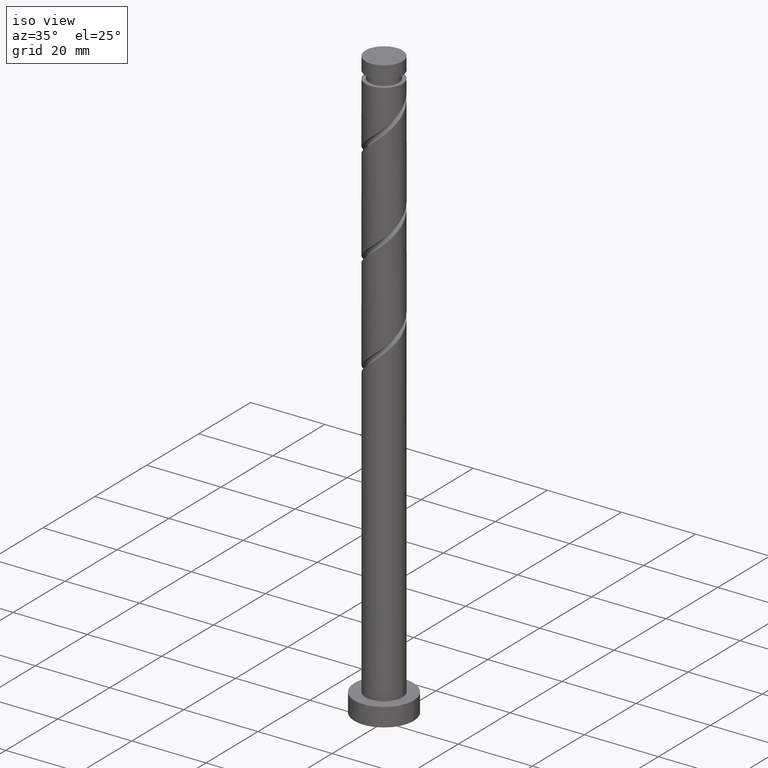
[diagram: clean part render]
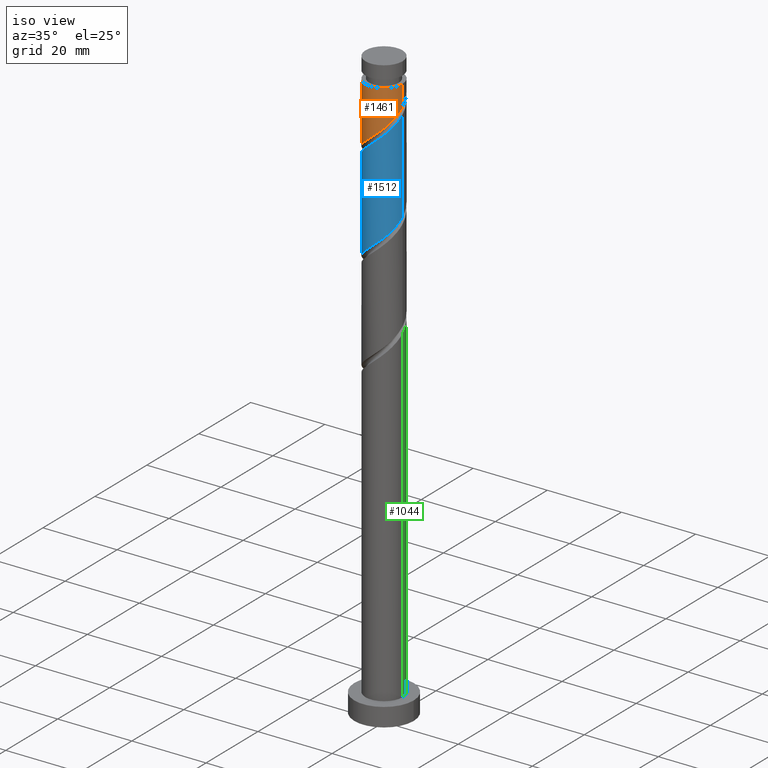
[diagram: same view with three faces highlighted in distinct colors, each labeled with its STEP entity id]
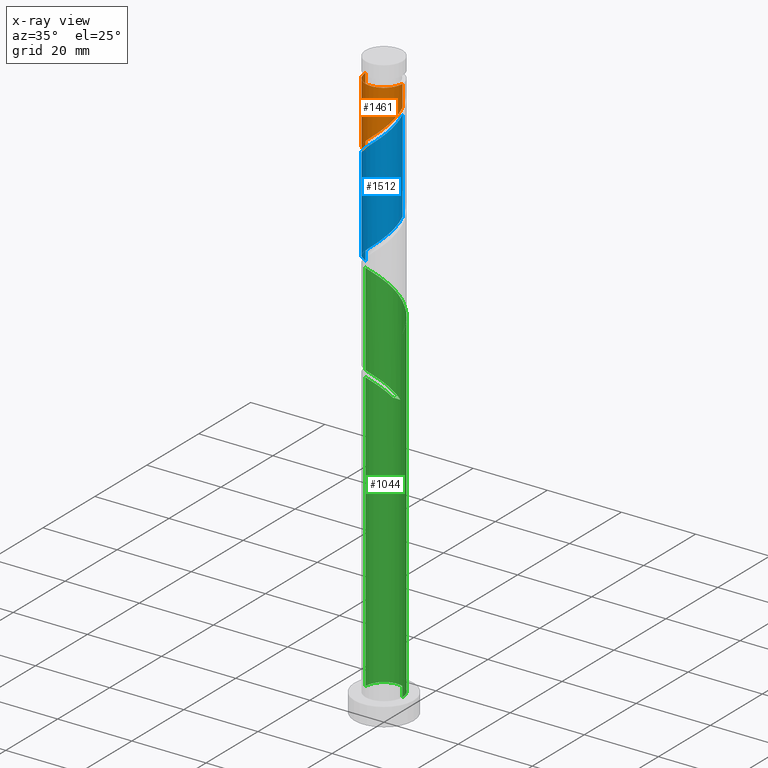
[diagram: x-ray of the same camera — body ghosted, the three highlighted faces saturated]
A machine part, iso view with three faces highlighted in distinct colors.
The next image is the same camera in x-ray (body ghosted, the three faces saturated) — at least one of them is partly hidden behind the body in this view.
Their STEP definitions:

[orange] entity #1461 — the highlighted cylindrical surface (edge-blend (fillet) strip) has radius 5 mm, axis along (-0, -0, -1).
#97 = CARTESIAN_POINT ( 'NONE',  ( -5.000000000000000000, -0.5726446369256177338, 135.8499097689624762 ) ) ;
#116 = CARTESIAN_POINT ( 'NONE',  ( 0.000000000000000000, 0.000000000000000000, 160.0000000000000000 ) ) ;
#124 = DIRECTION ( 'NONE',  ( -1.000000000000000000, 0.000000000000000000, 0.000000000000000000 ) ) ;
#224 = FACE_OUTER_BOUND ( 'NONE', #928, .T. ) ;
#227 = CARTESIAN_POINT ( 'NONE',  ( -4.707993719930677834, -1.830737577780034542, 136.9387377609327245 ) ) ;
#289 = ORIENTED_EDGE ( 'NONE', *, *, #1433, .F. ) ;
#306 = CARTESIAN_POINT ( 'NONE',  ( 4.708523589020789935, -1.682202607189386967, 147.2417680639629793 ) ) ;
#316 = CARTESIAN_POINT ( 'NONE',  ( 2.482120673787417520, -4.399532009925572140, 144.2114650336599198 ) ) ;
#343 = CARTESIAN_POINT ( 'NONE',  ( 5.000000000000000000, 3.589636968839166370E-16, 148.6972831493244769 ) ) ;
#410 = VERTEX_POINT ( 'NONE', #462 ) ;
#436 = CARTESIAN_POINT ( 'NONE',  ( 5.000000000000000888, -0.1438776326191063271, 148.5751851446062801 ) ) ;
#462 = CARTESIAN_POINT ( 'NONE',  ( 4.999999999999993783, 6.123233995736762338E-16, 154.5144953366902314 ) ) ;
#471 = CARTESIAN_POINT ( 'NONE',  ( -0.2904737965312536030, -5.043057596253620822, 141.7872226094175687 ) ) ;
#498 = CARTESIAN_POINT ( 'NONE',  ( 1.812103308943839419, -4.660073132228159665, 143.6054044275993533 ) ) ;
#505 = CARTESIAN_POINT ( 'NONE',  ( -5.000000000000000000, 0.000000000000000000, 160.0000000000000000 ) ) ;
#537 = ORIENTED_EDGE ( 'NONE', *, *, #676, .T. ) ;
#560 = EDGE_CURVE ( 'NONE', #563, #1305, #763, .T. ) ;
#563 = VERTEX_POINT ( 'NONE', #343 ) ;
#573 = CARTESIAN_POINT ( 'NONE',  ( 4.991726541412347729, -0.2875171921111941420, 148.4538892760842259 ) ) ;
#581 = CARTESIAN_POINT ( 'NONE',  ( 4.043864058114778892, -2.940605971477217473, 146.0296468518417328 ) ) ;
#597 = CARTESIAN_POINT ( 'NONE',  ( -4.999999999999993783, 0.000000000000000000, 154.5144953366902314 ) ) ;
#601 = CARTESIAN_POINT ( 'NONE',  ( -2.335172983261505131, -4.421195216029887298, 139.9690407912356989 ) ) ;
#676 = EDGE_CURVE ( 'NONE', #410, #1336, #948, .T. ) ;
#696 = EDGE_CURVE ( 'NONE', #1336, #1305, #1655, .T. ) ;
#763 =( BOUNDED_CURVE ( )  B_SPLINE_CURVE ( 2, ( #1225, #436, #573, #977, #306, #826, #581, #1091, #1591, #316, #498, #985, #1387, #471, #1520, #1010, #601, #1611, #1395, #881, #1130, #227, #1377, #97, #1265 ),
 .UNSPECIFIED., .F., .T. ) 
 B_SPLINE_CURVE_WITH_KNOTS ( ( 3, 2, 2, 2, 2, 2, 2, 2, 2, 2, 2, 2, 3 ),
 ( 0.3045252162417512176, 0.3068181818181818232, 0.3181818181818181768, 0.3295454545454545303, 0.3409090909090908839, 0.3522727272727272929, 0.3636363636363636465, 0.3750000000000000000, 0.3863636363636363535, 0.3977272727272727071, 0.4090909090909091161, 0.4204545454545454697, 0.4295252162417512731 ),
 .UNSPECIFIED. ) 
 CURVE ( )  GEOMETRIC_REPRESENTATION_ITEM ( )  RATIONAL_B_SPLINE_CURVE ( ( 0.9061101570135533523, 0.9072237824201355716, 0.9090909090909131685, 0.8998376744372155178, 0.9090909090909131685, 0.8998376744372155178, 0.9090909090909131685, 0.8998376744372155178, 0.9090909090909131685, 0.8998376744372155178, 0.9090909090909131685, 0.8998376744372155178, 0.9090909090909131685, 0.8998376744372155178, 0.9090909090909131685, 0.8998376744372155178, 0.9090909090909131685, 0.8998376744372155178, 0.9090909090909131685, 0.8998376744372155178, 0.9090909090909131685, 0.8998376744372155178, 0.9090909090909131685, 0.9017048011079930037, 0.9061101570135534633 ) ) 
 REPRESENTATION_ITEM ( '' )  );
#787 = AXIS2_PLACEMENT_3D ( 'NONE', #116, #1007, #124 ) ;
#826 = CARTESIAN_POINT ( 'NONE',  ( 4.466659368005205799, -2.359186096053885073, 146.6357074579024129 ) ) ;
#830 = ORIENTED_EDGE ( 'NONE', *, *, #560, .F. ) ;
#851 = DIRECTION ( 'NONE',  ( -0.000000000000000000, -0.000000000000000000, -1.000000000000000000 ) ) ;
#862 = VECTOR ( 'NONE', #1158, 1000.000000000000000 ) ;
#881 = CARTESIAN_POINT ( 'NONE',  ( -4.001508515401012822, -3.082974950721431018, 138.1508589730539427 ) ) ;
#928 = EDGE_LOOP ( 'NONE', ( #289, #537, #1442, #830 ) ) ;
#948 = CIRCLE ( 'NONE', #1142, 4.999999999999993783 ) ;
#977 = CARTESIAN_POINT ( 'NONE',  ( 4.950387810036377623, -1.005219118324889971, 147.8478286700236310 ) ) ;
#985 = CARTESIAN_POINT ( 'NONE',  ( 1.142085944100263095, -4.920614254530754295, 142.9993438215387300 ) ) ;
#999 = DIRECTION ( 'NONE',  ( -0.000000000000000000, -0.000000000000000000, -1.000000000000000000 ) ) ;
#1007 = DIRECTION ( 'NONE',  ( -0.000000000000000000, -0.000000000000000000, -1.000000000000000000 ) ) ;
#1010 = CARTESIAN_POINT ( 'NONE',  ( -1.699501077681990768, -4.756942403746379000, 140.5751013972963221 ) ) ;
#1091 = CARTESIAN_POINT ( 'NONE',  ( 3.621068748224353762, -3.522025846900549428, 145.4235862457811663 ) ) ;
#1130 = CARTESIAN_POINT ( 'NONE',  ( -4.354751117665845328, -2.456856264250733002, 137.5447983669932626 ) ) ;
#1140 = CARTESIAN_POINT ( 'NONE',  ( 0.000000000000000000, 0.000000000000000000, 154.5144953366902314 ) ) ;
#1142 = AXIS2_PLACEMENT_3D ( 'NONE', #1140, #851, #1362 ) ;
#1158 = DIRECTION ( 'NONE',  ( -0.000000000000000000, -0.000000000000000000, -1.000000000000000000 ) ) ;
#1225 = CARTESIAN_POINT ( 'NONE',  ( 5.000000000000000000, 3.589636968839166370E-16, 148.6972831493244769 ) ) ;
#1265 = CARTESIAN_POINT ( 'NONE',  ( -4.999999999999999112, -1.510638891053149259E-15, 135.3639498159911341 ) ) ;
#1305 = VERTEX_POINT ( 'NONE', #1606 ) ;
#1336 = VERTEX_POINT ( 'NONE', #597 ) ;
#1362 = DIRECTION ( 'NONE',  ( -1.000000000000000000, 0.000000000000000000, 0.000000000000000000 ) ) ;
#1377 = CARTESIAN_POINT ( 'NONE',  ( -4.870529496359500499, -1.130461155941268059, 136.3326771548720444 ) ) ;
#1387 = CARTESIAN_POINT ( 'NONE',  ( 0.4258060737845039134, -4.981835925392186226, 142.3932832154781352 ) ) ;
#1395 = CARTESIAN_POINT ( 'NONE',  ( -3.486176702121015047, -3.584211489517412197, 138.7569195791144807 ) ) ;
#1433 = EDGE_CURVE ( 'NONE', #410, #563, #1492, .T. ) ;
#1442 = ORIENTED_EDGE ( 'NONE', *, *, #696, .T. ) ;
#1461 = ADVANCED_FACE ( 'NONE', ( #224 ), #1652, .T. ) ;
#1492 = LINE ( 'NONE', #1617, #1607 ) ;
#1520 = CARTESIAN_POINT ( 'NONE',  ( -0.9949874371066220746, -4.899999999999999467, 141.1811620033569170 ) ) ;
#1591 = CARTESIAN_POINT ( 'NONE',  ( 3.051594711005883642, -3.960778928413059674, 144.8175256397205430 ) ) ;
#1606 = CARTESIAN_POINT ( 'NONE',  ( -4.999999999999999112, -1.510638891053149259E-15, 135.3639498159911341 ) ) ;
#1607 = VECTOR ( 'NONE', #999, 1000.000000000000000 ) ;
#1611 = CARTESIAN_POINT ( 'NONE',  ( -2.970844888841019937, -4.085448028313397373, 139.3629801851751040 ) ) ;
#1617 = CARTESIAN_POINT ( 'NONE',  ( 5.000000000000000000, 6.123233995736766282E-16, 160.0000000000000000 ) ) ;
#1652 = CYLINDRICAL_SURFACE ( 'NONE', #787, 5.000000000000000000 ) ;
#1655 = LINE ( 'NONE', #505, #862 ) ;

[blue] entity #1512 — the highlighted cylindrical surface (edge-blend (fillet) strip) has radius 5 mm, axis along (-0, -0, -1).
#2 = CARTESIAN_POINT ( 'NONE',  ( 5.000000000000000888, -0.1438776326191028299, 121.9085184779395661 ) ) ;
#21 = CARTESIAN_POINT ( 'NONE',  ( -3.486176702121015047, -3.584211489517412197, 112.0902529124478235 ) ) ;
#30 = CARTESIAN_POINT ( 'NONE',  ( 5.000000000000000000, 7.343798965416794784E-15, 122.0306164826577913 ) ) ;
#57 = VECTOR ( 'NONE', #896, 1000.000000000000000 ) ;
#64 = CARTESIAN_POINT ( 'NONE',  ( 4.354751117665853322, -2.456856264250739219, 144.8175256397205430 ) ) ;
#67 = VERTEX_POINT ( 'NONE', #547 ) ;
#108 = CARTESIAN_POINT ( 'NONE',  ( -5.000000000000007105, 2.886666395774807235E-15, 133.6650408573893003 ) ) ;
#119 = CARTESIAN_POINT ( 'NONE',  ( 0.4258060737845039134, -4.981835925392186226, 115.7266165488114353 ) ) ;
#142 = CARTESIAN_POINT ( 'NONE',  ( -0.2904737965312536030, -5.043057596253620822, 115.1205559427508831 ) ) ;
#154 = CARTESIAN_POINT ( 'NONE',  ( 3.486176702121021709, -3.584211489517420635, 143.6054044275993249 ) ) ;
#164 = CARTESIAN_POINT ( 'NONE',  ( -4.708523589020798816, -1.682202607189388521, 135.1205559427508831 ) ) ;
#170 = CARTESIAN_POINT ( 'NONE',  ( -3.051594711005890748, -3.960778928413065003, 137.5447983669933194 ) ) ;
#217 = DIRECTION ( 'NONE',  ( -1.000000000000000000, 0.000000000000000000, 0.000000000000000000 ) ) ;
#244 = CARTESIAN_POINT ( 'NONE',  ( 4.950387810036377623, -1.005219118324889971, 121.1811620033569454 ) ) ;
#259 = CARTESIAN_POINT ( 'NONE',  ( 4.708523589020789935, -1.682202607189386967, 120.5751013972962795 ) ) ;
#281 =( BOUNDED_CURVE ( )  B_SPLINE_CURVE ( 2, ( #369, #2, #515, #244, #259, #1037, #789, #1540, #1299, #1656, #905, #1388, #119, #142, #661, #1181, #1411, #781, #21, #757, #1266, #890, #766, #1275, #1315 ),
 .UNSPECIFIED., .F., .T. ) 
 B_SPLINE_CURVE_WITH_KNOTS ( ( 3, 2, 2, 2, 2, 2, 2, 2, 2, 2, 2, 2, 3 ),
 ( 0.5545252162417511066, 0.5568181818181817677, 0.5681818181818182323, 0.5795454545454545858, 0.5909090909090909394, 0.6022727272727272929, 0.6136363636363636465, 0.6250000000000000000, 0.6363636363636363535, 0.6477272727272727071, 0.6590909090909090606, 0.6704545454545454142, 0.6795252162417513286 ),
 .UNSPECIFIED. ) 
 CURVE ( )  GEOMETRIC_REPRESENTATION_ITEM ( )  RATIONAL_B_SPLINE_CURVE ( ( 0.9061101570135534633, 0.9072237824201355716, 0.9090909090909131685, 0.8998376744372155178, 0.9090909090909131685, 0.8998376744372155178, 0.9090909090909131685, 0.8998376744372155178, 0.9090909090909131685, 0.8998376744372155178, 0.9090909090909131685, 0.8998376744372155178, 0.9090909090909131685, 0.8998376744372155178, 0.9090909090909131685, 0.8998376744372155178, 0.9090909090909131685, 0.8998376744372155178, 0.9090909090909131685, 0.8998376744372155178, 0.9090909090909131685, 0.8998376744372155178, 0.9090909090909131685, 0.9017048011079928926, 0.9061101570135534633 ) ) 
 REPRESENTATION_ITEM ( '' )  );
#296 = VERTEX_POINT ( 'NONE', #470 ) ;
#346 = ORIENTED_EDGE ( 'NONE', *, *, #1219, .F. ) ;
#369 = CARTESIAN_POINT ( 'NONE',  ( 5.000000000000000000, 7.343798965416794784E-15, 122.0306164826578055 ) ) ;
#373 = LINE ( 'NONE', #734, #57 ) ;
#415 = CARTESIAN_POINT ( 'NONE',  ( -3.621068748224359091, -3.522025846900554313, 136.9387377609326393 ) ) ;
#422 = CARTESIAN_POINT ( 'NONE',  ( 2.335172983261507795, -4.421195216029893515, 142.3932832154781352 ) ) ;
#429 = CARTESIAN_POINT ( 'NONE',  ( -2.482120673787422405, -4.399532009925576581, 138.1508589730538858 ) ) ;
#437 = CARTESIAN_POINT ( 'NONE',  ( 1.699501077681991434, -4.756942403746386105, 141.7872226094175119 ) ) ;
#440 = ORIENTED_EDGE ( 'NONE', *, *, #872, .F. ) ;
#470 = CARTESIAN_POINT ( 'NONE',  ( 5.000000000000007994, 3.903730203612562477E-15, 146.9983741907226715 ) ) ;
#512 = EDGE_CURVE ( 'NONE', #1416, #67, #625, .T. ) ;
#515 = CARTESIAN_POINT ( 'NONE',  ( 4.991726541412347729, -0.2875171921111941420, 121.7872226094174835 ) ) ;
#528 = ORIENTED_EDGE ( 'NONE', *, *, #512, .T. ) ;
#547 = CARTESIAN_POINT ( 'NONE',  ( -5.000000000000000000, 5.444282736072736138E-15, 108.6972831493244627 ) ) ;
#574 = CARTESIAN_POINT ( 'NONE',  ( 5.000000000000006217, -0.5726446369256183999, 146.5124142377513579 ) ) ;
#595 = EDGE_LOOP ( 'NONE', ( #1421, #440, #528, #346 ) ) ;
#625 = LINE ( 'NONE', #1150, #1635 ) ;
#661 = CARTESIAN_POINT ( 'NONE',  ( -0.9949874371066220746, -4.899999999999999467, 114.5144953366902030 ) ) ;
#672 = CARTESIAN_POINT ( 'NONE',  ( 5.000000000000007994, 3.903730203612562477E-15, 146.9983741907226715 ) ) ;
#682 = CARTESIAN_POINT ( 'NONE',  ( -4.991726541412356610, -0.2875171921111925877, 133.9084347306296365 ) ) ;
#734 = CARTESIAN_POINT ( 'NONE',  ( 5.000000000000000000, 6.123233995736766282E-16, 160.0000000000000000 ) ) ;
#743 = DIRECTION ( 'NONE',  ( -0.000000000000000000, -0.000000000000000000, -1.000000000000000000 ) ) ;
#757 = CARTESIAN_POINT ( 'NONE',  ( -4.001508515401012822, -3.082974950721431018, 111.4841923063872429 ) ) ;
#766 = CARTESIAN_POINT ( 'NONE',  ( -4.870529496359500499, -1.130461155941268059, 109.6660104882053730 ) ) ;
#771 = CARTESIAN_POINT ( 'NONE',  ( 0.000000000000000000, 0.000000000000000000, 160.0000000000000000 ) ) ;
#781 = CARTESIAN_POINT ( 'NONE',  ( -2.970844888841019937, -4.085448028313397373, 112.6963135185084184 ) ) ;
#789 = CARTESIAN_POINT ( 'NONE',  ( 4.043864058114778892, -2.940605971477217473, 119.3629801851750614 ) ) ;
#817 = CARTESIAN_POINT ( 'NONE',  ( -0.4258060737845069110, -4.981835925392195108, 139.9690407912356420 ) ) ;
#872 = EDGE_CURVE ( 'NONE', #1416, #296, #1105, .T. ) ;
#877 = VERTEX_POINT ( 'NONE', #30 ) ;
#888 = DIRECTION ( 'NONE',  ( -0.000000000000000000, -0.000000000000000000, -1.000000000000000000 ) ) ;
#890 = CARTESIAN_POINT ( 'NONE',  ( -4.707993719930677834, -1.830737577780034542, 110.2720710942659963 ) ) ;
#896 = DIRECTION ( 'NONE',  ( -0.000000000000000000, -0.000000000000000000, -1.000000000000000000 ) ) ;
#905 = CARTESIAN_POINT ( 'NONE',  ( 1.812103308943839419, -4.660073132228159665, 116.9387377609326535 ) ) ;
#944 = CARTESIAN_POINT ( 'NONE',  ( 4.001508515401017263, -3.082974950721437679, 144.2114650336599198 ) ) ;
#953 = CARTESIAN_POINT ( 'NONE',  ( 4.870529496359508492, -1.130461155941271389, 146.0296468518417896 ) ) ;
#1037 = CARTESIAN_POINT ( 'NONE',  ( 4.466659368005205799, -2.359186096053885073, 119.9690407912357131 ) ) ;
#1058 = AXIS2_PLACEMENT_3D ( 'NONE', #771, #743, #217 ) ;
#1075 = CARTESIAN_POINT ( 'NONE',  ( 2.970844888841024378, -4.085448028313401814, 142.9993438215387300 ) ) ;
#1083 = CARTESIAN_POINT ( 'NONE',  ( 0.9949874371066216305, -4.900000000000007461, 141.1811620033568602 ) ) ;
#1105 =( BOUNDED_CURVE ( )  B_SPLINE_CURVE ( 2, ( #1326, #1317, #682, #1471, #164, #1562, #1188, #415, #170, #429, #1195, #1207, #817, #1217, #1083, #437, #422, #1075, #154, #944, #64, #1332, #953, #574, #672 ),
 .UNSPECIFIED., .F., .T. ) 
 B_SPLINE_CURVE_WITH_KNOTS ( ( 3, 2, 2, 2, 2, 2, 2, 2, 2, 2, 2, 2, 3 ),
 ( 0.5545252162417513286, 0.5568181818181818787, 0.5681818181818181213, 0.5795454545454545858, 0.5909090909090908283, 0.6022727272727272929, 0.6136363636363636465, 0.6250000000000000000, 0.6363636363636363535, 0.6477272727272727071, 0.6590909090909091717, 0.6704545454545454142, 0.6795252162417513286 ),
 .UNSPECIFIED. ) 
 CURVE ( )  GEOMETRIC_REPRESENTATION_ITEM ( )  RATIONAL_B_SPLINE_CURVE ( ( 0.9061101570135606798, 0.9072237824201427880, 0.9090909090909202739, 0.8998376744372226232, 0.9090909090909202739, 0.8998376744372226232, 0.9090909090909202739, 0.8998376744372226232, 0.9090909090909202739, 0.8998376744372226232, 0.9090909090909202739, 0.8998376744372226232, 0.9090909090909202739, 0.8998376744372226232, 0.9090909090909202739, 0.8998376744372226232, 0.9090909090909202739, 0.8998376744372226232, 0.9090909090909202739, 0.8998376744372226232, 0.9090909090909202739, 0.8998376744372226232, 0.9090909090909202739, 0.9017048011080002201, 0.9061101570135606798 ) ) 
 REPRESENTATION_ITEM ( '' )  );
#1137 = CYLINDRICAL_SURFACE ( 'NONE', #1058, 5.000000000000000000 ) ;
#1150 = CARTESIAN_POINT ( 'NONE',  ( -5.000000000000000000, 0.000000000000000000, 160.0000000000000000 ) ) ;
#1181 = CARTESIAN_POINT ( 'NONE',  ( -1.699501077681990768, -4.756942403746379000, 113.9084347306296507 ) ) ;
#1188 = CARTESIAN_POINT ( 'NONE',  ( -4.043864058114787774, -2.940605971477222358, 136.3326771548720728 ) ) ;
#1195 = CARTESIAN_POINT ( 'NONE',  ( -1.812103308943844748, -4.660073132228168546, 138.7569195791145376 ) ) ;
#1207 = CARTESIAN_POINT ( 'NONE',  ( -1.142085944100265760, -4.920614254530760512, 139.3629801851750472 ) ) ;
#1217 = CARTESIAN_POINT ( 'NONE',  ( 0.2904737965312516601, -5.043057596253627040, 140.5751013972963506 ) ) ;
#1219 = EDGE_CURVE ( 'NONE', #877, #67, #281, .T. ) ;
#1266 = CARTESIAN_POINT ( 'NONE',  ( -4.354751117665845328, -2.456856264250733002, 110.8781317003265627 ) ) ;
#1275 = CARTESIAN_POINT ( 'NONE',  ( -5.000000000000001776, -0.5726446369256107394, 109.1832431022957905 ) ) ;
#1299 = CARTESIAN_POINT ( 'NONE',  ( 3.051594711005883642, -3.960778928413059674, 118.1508589730538716 ) ) ;
#1315 = CARTESIAN_POINT ( 'NONE',  ( -5.000000000000000000, 5.444282736072736138E-15, 108.6972831493244627 ) ) ;
#1317 = CARTESIAN_POINT ( 'NONE',  ( -5.000000000000006217, -0.1438776326191090471, 133.7871388621075539 ) ) ;
#1326 = CARTESIAN_POINT ( 'NONE',  ( -5.000000000000007105, 2.886666395774807235E-15, 133.6650408573893003 ) ) ;
#1332 = CARTESIAN_POINT ( 'NONE',  ( 4.707993719930686716, -1.830737577780037428, 145.4235862457811379 ) ) ;
#1388 = CARTESIAN_POINT ( 'NONE',  ( 1.142085944100263095, -4.920614254530754295, 116.3326771548720728 ) ) ;
#1411 = CARTESIAN_POINT ( 'NONE',  ( -2.335172983261505131, -4.421195216029887298, 113.3023741245690132 ) ) ;
#1416 = VERTEX_POINT ( 'NONE', #108 ) ;
#1421 = ORIENTED_EDGE ( 'NONE', *, *, #1530, .F. ) ;
#1471 = CARTESIAN_POINT ( 'NONE',  ( -4.950387810036383840, -1.005219118324889527, 134.5144953366902030 ) ) ;
#1512 = ADVANCED_FACE ( 'NONE', ( #1645 ), #1137, .T. ) ;
#1530 = EDGE_CURVE ( 'NONE', #296, #877, #373, .T. ) ;
#1540 = CARTESIAN_POINT ( 'NONE',  ( 3.621068748224353762, -3.522025846900549428, 118.7569195791144807 ) ) ;
#1562 = CARTESIAN_POINT ( 'NONE',  ( -4.466659368005212016, -2.359186096053888626, 135.7266165488114211 ) ) ;
#1635 = VECTOR ( 'NONE', #888, 1000.000000000000000 ) ;
#1645 = FACE_OUTER_BOUND ( 'NONE', #595, .T. ) ;
#1656 = CARTESIAN_POINT ( 'NONE',  ( 2.482120673787417520, -4.399532009925572140, 117.5447983669933052 ) ) ;

[green] entity #1044 — the highlighted cylindrical surface (edge-blend (fillet) strip) has radius 5 mm, axis along (-0, -0, -1).
#5 =( BOUNDED_CURVE ( )  B_SPLINE_CURVE ( 2, ( #1493, #226, #62, #1089, #342, #859, #1224, #480, #70, #1599, #608, #452, #1128, #11, #1519, #780, #764, #359, #109, #911, #880, #521, #650, #504, #1043 ),
 .UNSPECIFIED., .F., .T. ) 
 B_SPLINE_CURVE_WITH_KNOTS ( ( 3, 2, 2, 2, 2, 2, 2, 2, 2, 2, 2, 2, 3 ),
 ( 0.1795252162417513009, 0.1818181818181817677, 0.1931818181818182323, 0.2045454545454545858, 0.2159090909090909394, 0.2272727272727272929, 0.2386363636363636465, 0.2500000000000000000, 0.2613636363636363535, 0.2727272727272727071, 0.2840909090909090606, 0.2954545454545454142, 0.3045252162417513286 ),
 .UNSPECIFIED. ) 
 CURVE ( )  GEOMETRIC_REPRESENTATION_ITEM ( )  RATIONAL_B_SPLINE_CURVE ( ( 0.9061101570135605687, 0.9072237824201427880, 0.9090909090909202739, 0.8998376744372226232, 0.9090909090909202739, 0.8998376744372226232, 0.9090909090909202739, 0.8998376744372226232, 0.9090909090909202739, 0.8998376744372226232, 0.9090909090909202739, 0.8998376744372226232, 0.9090909090909202739, 0.8998376744372226232, 0.9090909090909202739, 0.8998376744372226232, 0.9090909090909202739, 0.8998376744372226232, 0.9090909090909202739, 0.8998376744372226232, 0.9090909090909202739, 0.8998376744372226232, 0.9090909090909202739, 0.9017048011080001091, 0.9061101570135606798 ) ) 
 REPRESENTATION_ITEM ( '' )  );
#11 = CARTESIAN_POINT ( 'NONE',  ( -0.2904737965312511050, 5.043057596253627928, 100.5751013972962795 ) ) ;
#62 = CARTESIAN_POINT ( 'NONE',  ( 4.991726541412356610, 0.2875171921111920881, 93.90843473062962232 ) ) ;
#70 = CARTESIAN_POINT ( 'NONE',  ( 3.051594711005889859, 3.960778928413066780, 97.54479836699326256 ) ) ;
#71 = EDGE_CURVE ( 'NONE', #570, #160, #419, .T. ) ;
#109 = CARTESIAN_POINT ( 'NONE',  ( -3.486176702121021709, 3.584211489517420635, 103.6054044275993107 ) ) ;
#139 = EDGE_CURVE ( 'NONE', #692, #1338, #1209, .T. ) ;
#160 = VERTEX_POINT ( 'NONE', #412 ) ;
#177 = DIRECTION ( 'NONE',  ( 1.000000000000000000, 0.000000000000000000, 0.000000000000000000 ) ) ;
#215 = AXIS2_PLACEMENT_3D ( 'NONE', #1456, #1062, #177 ) ;
#226 = CARTESIAN_POINT ( 'NONE',  ( 5.000000000000006217, 0.1438776326191124888, 93.78713886210755390 ) ) ;
#249 = CARTESIAN_POINT ( 'NONE',  ( -3.486176702121021709, 3.584211489517420635, 76.93873776093265349 ) ) ;
#258 = CARTESIAN_POINT ( 'NONE',  ( -5.000000000000000000, 0.000000000000000000, 5.000000000000000000 ) ) ;
#270 = VERTEX_POINT ( 'NONE', #1247 ) ;
#291 = CARTESIAN_POINT ( 'NONE',  ( 5.000000000000000000, 6.123233995736766282E-16, 160.0000000000000000 ) ) ;
#314 = CARTESIAN_POINT ( 'NONE',  ( -5.000000000000000000, 0.000000000000000000, 160.0000000000000000 ) ) ;
#315 = EDGE_CURVE ( 'NONE', #1338, #514, #587, .T. ) ;
#320 = AXIS2_PLACEMENT_3D ( 'NONE', #361, #852, #1363 ) ;
#322 = CARTESIAN_POINT ( 'NONE',  ( 0.000000000000000000, 0.000000000000000000, 74.51449533669023140 ) ) ;
#333 = FACE_OUTER_BOUND ( 'NONE', #644, .T. ) ;
#342 = CARTESIAN_POINT ( 'NONE',  ( 4.708523589020798816, 1.682202607189387411, 95.12055594275082626 ) ) ;
#359 = CARTESIAN_POINT ( 'NONE',  ( -2.970844888841024378, 4.085448028313403590, 102.9993438215387158 ) ) ;
#360 = DIRECTION ( 'NONE',  ( -0.000000000000000000, -0.000000000000000000, -1.000000000000000000 ) ) ;
#361 = CARTESIAN_POINT ( 'NONE',  ( 0.000000000000000000, 0.000000000000000000, 160.0000000000000000 ) ) ;
#366 = CARTESIAN_POINT ( 'NONE',  ( -4.991726541412347729, 0.2875171921111933648, 81.78722260941751188 ) ) ;
#374 = CARTESIAN_POINT ( 'NONE',  ( -1.699501077681992545, 4.756942403746386105, 75.12055594275084047 ) ) ;
#387 = ORIENTED_EDGE ( 'NONE', *, *, #1389, .T. ) ;
#403 = ORIENTED_EDGE ( 'NONE', *, *, #139, .F. ) ;
#411 = DIRECTION ( 'NONE',  ( -1.000000000000000000, 0.000000000000000000, 0.000000000000000000 ) ) ;
#412 = CARTESIAN_POINT ( 'NONE',  ( 5.000000000000000000, 6.123233995736766282E-16, 5.000000000000000000 ) ) ;
#413 = EDGE_CURVE ( 'NONE', #570, #270, #5, .T. ) ;
#419 = LINE ( 'NONE', #291, #884 ) ;
#420 = VERTEX_POINT ( 'NONE', #904 ) ;
#450 = CARTESIAN_POINT ( 'NONE',  ( -5.000000000000007994, -4.098168872758016579E-15, 80.33170752405604276 ) ) ;
#452 = CARTESIAN_POINT ( 'NONE',  ( 1.142085944100266204, 4.920614254530760512, 99.36298018517508979 ) ) ;
#458 = CIRCLE ( 'NONE', #215, 5.000000000000000000 ) ;
#469 = CARTESIAN_POINT ( 'NONE',  ( -4.043864058114778004, 2.940605971477216585, 79.36298018517507558 ) ) ;
#480 = CARTESIAN_POINT ( 'NONE',  ( 3.621068748224361311, 3.522025846900553869, 96.93873776093265349 ) ) ;
#484 = ORIENTED_EDGE ( 'NONE', *, *, #315, .F. ) ;
#496 = CARTESIAN_POINT ( 'NONE',  ( -5.000000000000000000, 5.444282736072736138E-15, 82.03061648265779127 ) ) ;
#504 = CARTESIAN_POINT ( 'NONE',  ( -5.000000000000007994, 0.5726446369256132929, 106.5124142377513721 ) ) ;
#514 = VERTEX_POINT ( 'NONE', #258 ) ;
#521 = CARTESIAN_POINT ( 'NONE',  ( -4.707993719930686716, 1.830737577780038539, 105.4235862457811379 ) ) ;
#539 = VECTOR ( 'NONE', #360, 1000.000000000000000 ) ;
#564 = AXIS2_PLACEMENT_3D ( 'NONE', #322, #1560, #411 ) ;
#570 = VERTEX_POINT ( 'NONE', #1628 ) ;
#587 = LINE ( 'NONE', #314, #1625 ) ;
#608 = CARTESIAN_POINT ( 'NONE',  ( 1.812103308943843416, 4.660073132228168546, 98.75691957911448071 ) ) ;
#624 = CARTESIAN_POINT ( 'NONE',  ( -2.482120673787417964, 4.399532009925572140, 77.54479836699329098 ) ) ;
#630 = CARTESIAN_POINT ( 'NONE',  ( -4.950387810036377623, 1.005219118324889305, 81.18116200335694543 ) ) ;
#632 = CARTESIAN_POINT ( 'NONE',  ( -0.9949874371066207424, 4.900000000000006573, 74.51449533669023140 ) ) ;
#644 = EDGE_LOOP ( 'NONE', ( #1297, #750, #1301, #484, #403, #387, #1081, #1307 ) ) ;
#650 = CARTESIAN_POINT ( 'NONE',  ( -4.870529496359508492, 1.130461155941271612, 106.0296468518417754 ) ) ;
#689 = EDGE_CURVE ( 'NONE', #270, #420, #1120, .T. ) ;
#692 = VERTEX_POINT ( 'NONE', #632 ) ;
#706 = CARTESIAN_POINT ( 'NONE',  ( 0.9949874371066227408, 4.900000000000000355, 74.51449533669023140 ) ) ;
#750 = ORIENTED_EDGE ( 'NONE', *, *, #71, .T. ) ;
#754 = CARTESIAN_POINT ( 'NONE',  ( -4.001508515401018151, 3.082974950721436791, 77.54479836699324835 ) ) ;
#764 = CARTESIAN_POINT ( 'NONE',  ( -2.335172983261508683, 4.421195216029893515, 102.3932832154780925 ) ) ;
#779 = CARTESIAN_POINT ( 'NONE',  ( -2.335172983261508683, 4.421195216029893515, 75.72661654881143534 ) ) ;
#780 = CARTESIAN_POINT ( 'NONE',  ( -1.699501077681992545, 4.756942403746386105, 101.7872226094174835 ) ) ;
#797 = VERTEX_POINT ( 'NONE', #706 ) ;
#813 = DIRECTION ( 'NONE',  ( -0.000000000000000000, -0.000000000000000000, -1.000000000000000000 ) ) ;
#852 = DIRECTION ( 'NONE',  ( -0.000000000000000000, -0.000000000000000000, -1.000000000000000000 ) ) ;
#859 = CARTESIAN_POINT ( 'NONE',  ( 4.466659368005212905, 2.359186096053887294, 95.72661654881144955 ) ) ;
#871 = DIRECTION ( 'NONE',  ( -0.000000000000000000, -0.000000000000000000, -1.000000000000000000 ) ) ;
#880 = CARTESIAN_POINT ( 'NONE',  ( -4.354751117665853322, 2.456856264250738331, 104.8175256397205146 ) ) ;
#884 = VECTOR ( 'NONE', #813, 1000.000000000000000 ) ;
#887 = CARTESIAN_POINT ( 'NONE',  ( -5.000000000000000000, 0.1438776326191157084, 81.90851847793956608 ) ) ;
#904 = CARTESIAN_POINT ( 'NONE',  ( -5.000000000000000000, 5.444282736072736138E-15, 82.03061648265779127 ) ) ;
#911 = CARTESIAN_POINT ( 'NONE',  ( -4.001508515401018151, 3.082974950721436791, 104.2114650336599198 ) ) ;
#914 = EDGE_CURVE ( 'NONE', #160, #514, #458, .T. ) ;
#1024 = CARTESIAN_POINT ( 'NONE',  ( -1.812103308943839419, 4.660073132228159665, 76.93873776093266770 ) ) ;
#1034 = CARTESIAN_POINT ( 'NONE',  ( -5.000000000000008882, 0.5726446369256092961, 79.84574757108472909 ) ) ;
#1042 = CARTESIAN_POINT ( 'NONE',  ( -5.000000000000007994, -4.098168872758016579E-15, 80.33170752405604276 ) ) ;
#1043 = CARTESIAN_POINT ( 'NONE',  ( -5.000000000000007994, -4.098168872758016579E-15, 106.9983741907226857 ) ) ;
#1044 = ADVANCED_FACE ( 'NONE', ( #333 ), #1226, .T. ) ;
#1062 = DIRECTION ( 'NONE',  ( 0.000000000000000000, 0.000000000000000000, 1.000000000000000000 ) ) ;
#1081 = ORIENTED_EDGE ( 'NONE', *, *, #1505, .F. ) ;
#1089 = CARTESIAN_POINT ( 'NONE',  ( 4.950387810036383840, 1.005219118324888861, 94.51449533669025982 ) ) ;
#1120 = LINE ( 'NONE', #1248, #539 ) ;
#1124 = CARTESIAN_POINT ( 'NONE',  ( -0.9949874371066206313, 4.900000000000006573, 74.51449533669023140 ) ) ;
#1128 = CARTESIAN_POINT ( 'NONE',  ( 0.4258060737845075217, 4.981835925392195996, 99.96904079123571307 ) ) ;
#1156 = CARTESIAN_POINT ( 'NONE',  ( 0.2904737965312522707, 5.043057596253619046, 75.12055594275085468 ) ) ;
#1165 = CARTESIAN_POINT ( 'NONE',  ( -4.354751117665853322, 2.456856264250738331, 78.15085897305387164 ) ) ;
#1209 =( BOUNDED_CURVE ( )  B_SPLINE_CURVE ( 2, ( #1124, #374, #779, #1634, #249, #754, #1165, #1262, #1662, #1034, #1042 ),
 .UNSPECIFIED., .F., .T. ) 
 B_SPLINE_CURVE_WITH_KNOTS ( ( 3, 2, 2, 2, 2, 3 ),
 ( 0.000000000000000000, 0.01136363636363635181, 0.02272727272727270362, 0.03409090909090906063, 0.04545454545454540723, 0.05452521624175139109 ),
 .UNSPECIFIED. ) 
 CURVE ( )  GEOMETRIC_REPRESENTATION_ITEM ( )  RATIONAL_B_SPLINE_CURVE ( ( 0.9090909090909202739, 0.8998376744372226232, 0.9090909090909202739, 0.8998376744372226232, 0.9090909090909202739, 0.8998376744372226232, 0.9090909090909202739, 0.8998376744372226232, 0.9090909090909202739, 0.9017048011080001091, 0.9061101570135605687 ) ) 
 REPRESENTATION_ITEM ( '' )  );
#1224 = CARTESIAN_POINT ( 'NONE',  ( 4.043864058114788662, 2.940605971477221026, 96.33267715487207283 ) ) ;
#1226 = CYLINDRICAL_SURFACE ( 'NONE', #320, 5.000000000000000000 ) ;
#1246 = CARTESIAN_POINT ( 'NONE',  ( -3.051594711005884086, 3.960778928413059674, 78.15085897305387164 ) ) ;
#1247 = CARTESIAN_POINT ( 'NONE',  ( -5.000000000000007994, -4.098168872758016579E-15, 106.9983741907226857 ) ) ;
#1248 = CARTESIAN_POINT ( 'NONE',  ( -5.000000000000000000, 0.000000000000000000, 160.0000000000000000 ) ) ;
#1253 = CARTESIAN_POINT ( 'NONE',  ( -1.142085944100262873, 4.920614254530754295, 76.33267715487207283 ) ) ;
#1262 = CARTESIAN_POINT ( 'NONE',  ( -4.707993719930686716, 1.830737577780038539, 78.75691957911446650 ) ) ;
#1272 = CARTESIAN_POINT ( 'NONE',  ( -3.621068748224353318, 3.522025846900549428, 78.75691957911450913 ) ) ;
#1279 = CARTESIAN_POINT ( 'NONE',  ( -4.466659368005205799, 2.359186096053885517, 79.96904079123571307 ) ) ;
#1293 = CIRCLE ( 'NONE', #564, 5.000000000000000000 ) ;
#1297 = ORIENTED_EDGE ( 'NONE', *, *, #413, .F. ) ;
#1301 = ORIENTED_EDGE ( 'NONE', *, *, #914, .T. ) ;
#1307 = ORIENTED_EDGE ( 'NONE', *, *, #689, .F. ) ;
#1318 =( BOUNDED_CURVE ( )  B_SPLINE_CURVE ( 2, ( #496, #887, #366, #630, #1393, #1279, #469, #1272, #1246, #624, #1024, #1253, #1367, #1156, #1500 ),
 .UNSPECIFIED., .F., .T. ) 
 B_SPLINE_CURVE_WITH_KNOTS ( ( 3, 2, 2, 2, 2, 2, 2, 3 ),
 ( 0.9295252162417513286, 0.9318181818181817677, 0.9431818181818182323, 0.9545454545454545858, 0.9659090909090909394, 0.9772727272727272929, 0.9886363636363636465, 1.000000000000000000 ),
 .UNSPECIFIED. ) 
 CURVE ( )  GEOMETRIC_REPRESENTATION_ITEM ( )  RATIONAL_B_SPLINE_CURVE ( ( 0.9061101570135534633, 0.9072237824201356826, 0.9090909090909131685, 0.8998376744372155178, 0.9090909090909131685, 0.8998376744372155178, 0.9090909090909131685, 0.8998376744372155178, 0.9090909090909131685, 0.8998376744372155178, 0.9090909090909131685, 0.8998376744372155178, 0.9090909090909131685, 0.8998376744372155178, 0.9090909090909131685 ) ) 
 REPRESENTATION_ITEM ( '' )  );
#1338 = VERTEX_POINT ( 'NONE', #450 ) ;
#1363 = DIRECTION ( 'NONE',  ( -1.000000000000000000, 0.000000000000000000, 0.000000000000000000 ) ) ;
#1367 = CARTESIAN_POINT ( 'NONE',  ( -0.4258060737845053567, 4.981835925392186226, 75.72661654881143534 ) ) ;
#1389 = EDGE_CURVE ( 'NONE', #692, #797, #1293, .T. ) ;
#1393 = CARTESIAN_POINT ( 'NONE',  ( -4.708523589020789935, 1.682202607189386523, 80.57510139729627952 ) ) ;
#1456 = CARTESIAN_POINT ( 'NONE',  ( 0.000000000000000000, 0.000000000000000000, 5.000000000000000000 ) ) ;
#1493 = CARTESIAN_POINT ( 'NONE',  ( 5.000000000000007994, 3.903730203612562477E-15, 93.66504085738932872 ) ) ;
#1500 = CARTESIAN_POINT ( 'NONE',  ( 0.9949874371066227408, 4.900000000000000355, 74.51449533669023140 ) ) ;
#1505 = EDGE_CURVE ( 'NONE', #420, #797, #1318, .T. ) ;
#1519 = CARTESIAN_POINT ( 'NONE',  ( -0.9949874371066209644, 4.900000000000007461, 101.1811620033569028 ) ) ;
#1560 = DIRECTION ( 'NONE',  ( 0.000000000000000000, -0.000000000000000000, -1.000000000000000000 ) ) ;
#1599 = CARTESIAN_POINT ( 'NONE',  ( 2.482120673787420628, 4.399532009925577469, 98.15085897305388585 ) ) ;
#1625 = VECTOR ( 'NONE', #871, 1000.000000000000000 ) ;
#1628 = CARTESIAN_POINT ( 'NONE',  ( 5.000000000000007994, 3.903730203612562477E-15, 93.66504085738932872 ) ) ;
#1634 = CARTESIAN_POINT ( 'NONE',  ( -2.970844888841024378, 4.085448028313403590, 76.33267715487203020 ) ) ;
#1662 = CARTESIAN_POINT ( 'NONE',  ( -4.870529496359508492, 1.130461155941271612, 79.36298018517508979 ) ) ;